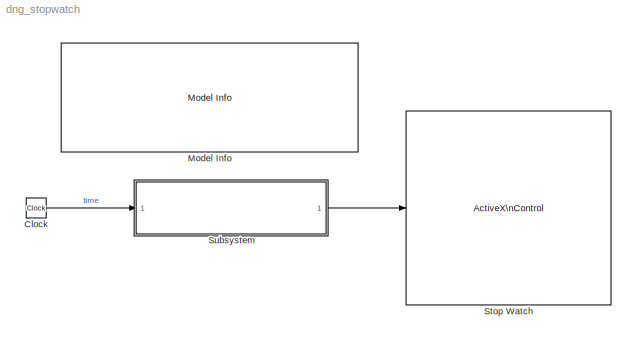
MODEL dng_stopwatch
KIND model
CONFIG AbsTol = auto
CONFIG FixedStep = .01
CONFIG MaxStep = auto
CONFIG MinStep = auto
CONFIG RelTol = 1e-3
CONFIG Solver = FixedStepDiscrete
CONFIG SolverMode = Auto
CONFIG StartTime = 0.0
CONFIG StopTime = inf
BLOCK [Clock] Clock
  Decimation = 10
  DisplayTime = off
BLOCK [Reference] Model Info  REF=simulink3/Signals\n& Systems/Model Info
  BlockCM = none
  DisplayStringWithTags = This is a typical sailing stopwatch, in which\n- The large needle spans 1 minute.\n- The small needle on the left spans 1 second.\n- The small needle on the right spans 15 minutes.
  Frame = on
  HorizontalTextAlignment = Left
  InitialBlockCM = none
  LeftAlignmentValue = 0.02
  MaskDisplayString = This is a typical sailing stopwatch, in which\\n- The large needle spans 1 minute.\\n- The small needle on the left spans 1 second.\\n- The small needle on the right spans 15 minutes.
  Ports = []
  SourceBlock = simulink3/Signals\n& Systems/Model Info
  SourceBlockDiagram = dng_stopwatch
  SourceType = CMBlock
  TagMaxNumber = 20
BLOCK [Reference] Stop Watch  REF=dnglibv1/ActiveX\nControl
  Ports = [1, 1]
  SourceBlock = dnglibv1/ActiveX\nControl
  SourceType = ActiveX Block
  border = on
  connect = input
  dialOut = 0
  inblock = on
  init = hActx.configuration='Angular Gauge\\Clocks\\Stop Watch';
  input = NeedleID,NeedleValue,NeedleID,NeedleValue,NeedleID,NeedleValue
  progid = mwagauge.agaugectrl.1
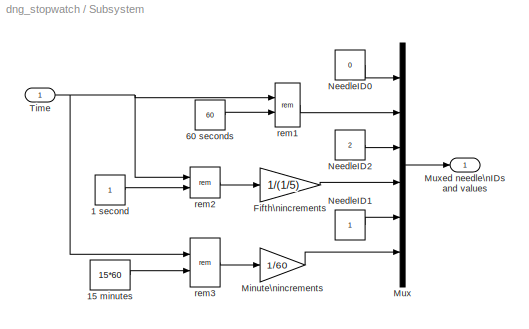
BLOCK [SubSystem] Subsystem
  Ports = [1, 1]
  RTWFcnNameOpts = Auto
  RTWFileNameOpts = Auto
  RTWSystemCode = Auto
  ShowPortLabels = on
  TreatAsAtomicUnit = off
BLOCK [Constant] Subsystem/1 second
  ConRadixGroup = Use specified scaling
  OutDataType = sfix(16)
  OutScaling = 2^0
  OutputDataTypeScalingMode = Use data type of 'Constant value'
  SettingsModeFixpt = off
  Value = 1
  VectorParams1D = on
BLOCK [Constant] Subsystem/15 minutes
  ConRadixGroup = Use specified scaling
  OutDataType = sfix(16)
  OutScaling = 2^0
  OutputDataTypeScalingMode = Use data type of 'Constant value'
  SettingsModeFixpt = off
  Value = 15*60
  VectorParams1D = on
BLOCK [Constant] Subsystem/60 seconds
  ConRadixGroup = Use specified scaling
  OutDataType = sfix(16)
  OutScaling = 2^0
  OutputDataTypeScalingMode = Use data type of 'Constant value'
  SettingsModeFixpt = off
  Value = 60
  VectorParams1D = on
BLOCK [Gain] Subsystem/Fifth\nincrements
  Gain = 1/(1/5)
  Multiplication = Element-wise(K.*u)
  SaturateOnIntegerOverflow = on
BLOCK [Gain] Subsystem/Minute\nincrements
  Gain = 1/60
  Multiplication = Element-wise(K.*u)
  SaturateOnIntegerOverflow = on
BLOCK [Mux] Subsystem/Mux
  DisplayOption = bar
  Inputs = 6
  Ports = [6, 1]
BLOCK [Outport] Subsystem/Muxed needle\nIDs and values
  InitialOutput = []
  OutputWhenDisabled = held
  Port = 1
BLOCK [Constant] Subsystem/NeedleID0
  ConRadixGroup = Use specified scaling
  OutDataType = sfix(16)
  OutScaling = 2^0
  OutputDataTypeScalingMode = Use data type of 'Constant value'
  SettingsModeFixpt = off
  Value = 0
  VectorParams1D = on
BLOCK [Constant] Subsystem/NeedleID1
  ConRadixGroup = Use specified scaling
  OutDataType = sfix(16)
  OutScaling = 2^0
  OutputDataTypeScalingMode = Use data type of 'Constant value'
  SettingsModeFixpt = off
  Value = 1
  VectorParams1D = on
BLOCK [Constant] Subsystem/NeedleID2
  ConRadixGroup = Use specified scaling
  OutDataType = sfix(16)
  OutScaling = 2^0
  OutputDataTypeScalingMode = Use data type of 'Constant value'
  SettingsModeFixpt = off
  Value = 2
  VectorParams1D = on
BLOCK [Inport] Subsystem/Time
  Interpolate = on
  LatchInput = off
  Port = 1
BLOCK [Math] Subsystem/rem1
  Operator = rem
  OutputSignalType = auto
  Ports = [2, 1]
BLOCK [Math] Subsystem/rem2
  Operator = rem
  OutputSignalType = auto
  Ports = [2, 1]
BLOCK [Math] Subsystem/rem3
  Operator = rem
  OutputSignalType = auto
  Ports = [2, 1]
LINE Clock:1 -> Subsystem:1
LINE Subsystem/1 second:1 -> Subsystem/rem2:2
LINE Subsystem/15 minutes:1 -> Subsystem/rem3:2
LINE Subsystem/60 seconds:1 -> Subsystem/rem1:2
LINE Subsystem/Fifth\nincrements:1 -> Subsystem/Mux:4
LINE Subsystem/Minute\nincrements:1 -> Subsystem/Mux:6
LINE Subsystem/Mux:1 -> Subsystem/Muxed needle\nIDs and values:1
LINE Subsystem/NeedleID0:1 -> Subsystem/Mux:1
LINE Subsystem/NeedleID1:1 -> Subsystem/Mux:5
LINE Subsystem/NeedleID2:1 -> Subsystem/Mux:3
NET Subsystem/Time:1 -> Subsystem/rem1:1, Subsystem/rem2:1, Subsystem/rem3:1
LINE Subsystem/rem1:1 -> Subsystem/Mux:2
LINE Subsystem/rem2:1 -> Subsystem/Fifth\nincrements:1
LINE Subsystem/rem3:1 -> Subsystem/Minute\nincrements:1
LINE Subsystem:1 -> Stop Watch:1
note: NET lines group one-source signal fan-out (src -> all destinations, sorted); 1:1 wires keep LINE
